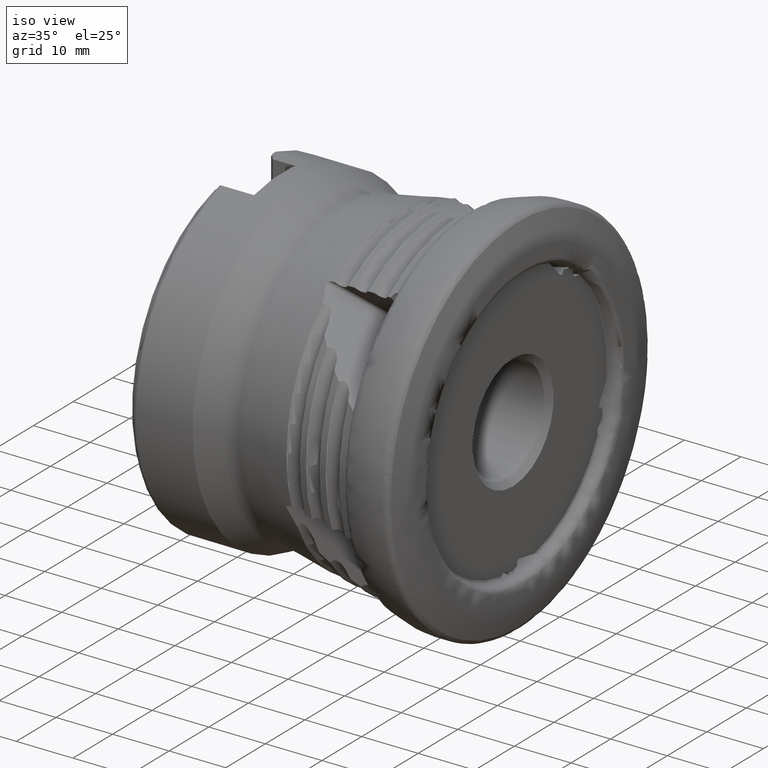
[diagram: clean part render]
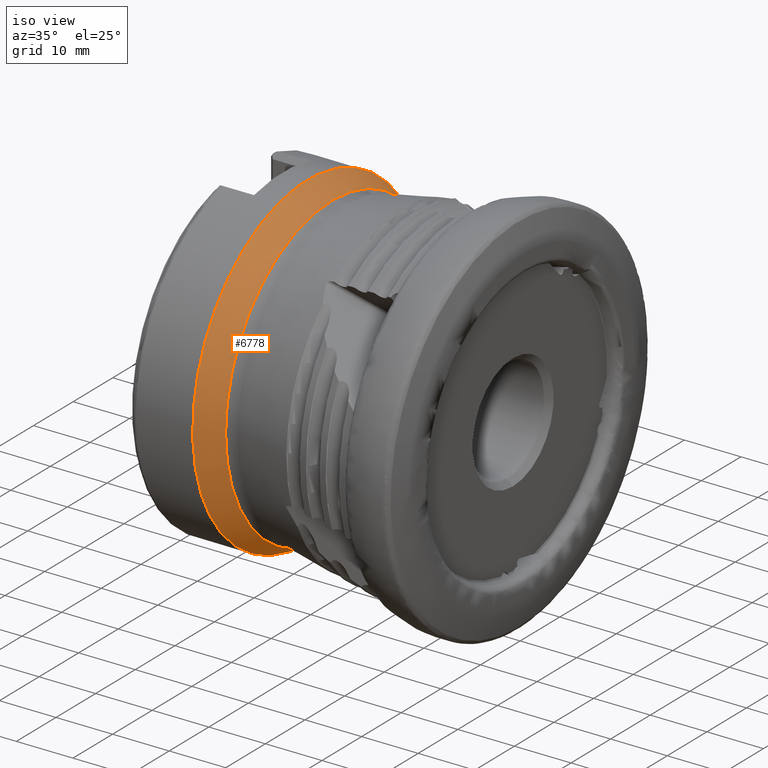
[diagram: same view with one face highlighted and labeled with its STEP entity id]
A machine part, iso view. The second image highlights one B-rep face of the part: STEP entity #6778.
In plain terms, the highlighted conical surface has half-angle 25.456 deg.
Its self-contained STEP definition (entity closure, byte-faithful):
#44 = AXIS2_PLACEMENT_3D ( 'NONE', #9135, #10004, #3100 ) ;
#298 = ORIENTED_EDGE ( 'NONE', *, *, #9443, .F. ) ;
#632 = DIRECTION ( 'NONE',  ( 1.000000000000000000, -0.0000000000000000000, -0.0000000000000000000 ) ) ;
#1681 = VERTEX_POINT ( 'NONE', #3843 ) ;
#2030 = DIRECTION ( 'NONE',  ( 1.000000000000000000, -0.0000000000000000000, -0.0000000000000000000 ) ) ;
#2530 = CIRCLE ( 'NONE', #6383, 26.92170001190708500 ) ;
#2989 = CARTESIAN_POINT ( 'NONE',  ( -37.54999999999999700, 0.0000000000000000000, -28.99999999999999300 ) ) ;
#3100 = DIRECTION ( 'NONE',  ( 0.0000000000000000000, 0.0000000000000000000, 1.000000000000000000 ) ) ;
#3843 = CARTESIAN_POINT ( 'NONE',  ( -33.18403469254878500, 0.0000000000000000000, -26.92170001190708500 ) ) ;
#4103 = FACE_OUTER_BOUND ( 'NONE', #7442, .T. ) ;
#5514 = CIRCLE ( 'NONE', #6235, 28.99999999999999300 ) ;
#5765 = CARTESIAN_POINT ( 'NONE',  ( -37.54999999999999700, 0.0000000000000000000, 0.0000000000000000000 ) ) ;
#6128 = CONICAL_SURFACE ( 'NONE', #44, 26.92170001190708500, 0.4442826974048798000 ) ;
#6235 = AXIS2_PLACEMENT_3D ( 'NONE', #5765, #632, #6629 ) ;
#6257 = VERTEX_POINT ( 'NONE', #2989 ) ;
#6383 = AXIS2_PLACEMENT_3D ( 'NONE', #7187, #2030, #8070 ) ;
#6398 = FACE_BOUND ( 'NONE', #9175, .T. ) ;
#6502 = ORIENTED_EDGE ( 'NONE', *, *, #8733, .T. ) ;
#6629 = DIRECTION ( 'NONE',  ( 0.0000000000000000000, 0.0000000000000000000, -1.000000000000000000 ) ) ;
#6778 = ADVANCED_FACE ( 'NONE', ( #4103, #6398 ), #6128, .T. ) ;
#7187 = CARTESIAN_POINT ( 'NONE',  ( -33.18403469254878500, 0.0000000000000000000, 0.0000000000000000000 ) ) ;
#7442 = EDGE_LOOP ( 'NONE', ( #6502 ) ) ;
#8070 = DIRECTION ( 'NONE',  ( 0.0000000000000000000, 0.0000000000000000000, -1.000000000000000000 ) ) ;
#8733 = EDGE_CURVE ( 'NONE', #6257, #6257, #5514, .T. ) ;
#9135 = CARTESIAN_POINT ( 'NONE',  ( -33.18403469254878500, 0.0000000000000000000, 0.0000000000000000000 ) ) ;
#9175 = EDGE_LOOP ( 'NONE', ( #298 ) ) ;
#9443 = EDGE_CURVE ( 'NONE', #1681, #1681, #2530, .T. ) ;
#10004 = DIRECTION ( 'NONE',  ( -1.000000000000000000, 0.0000000000000000000, 0.0000000000000000000 ) ) ;